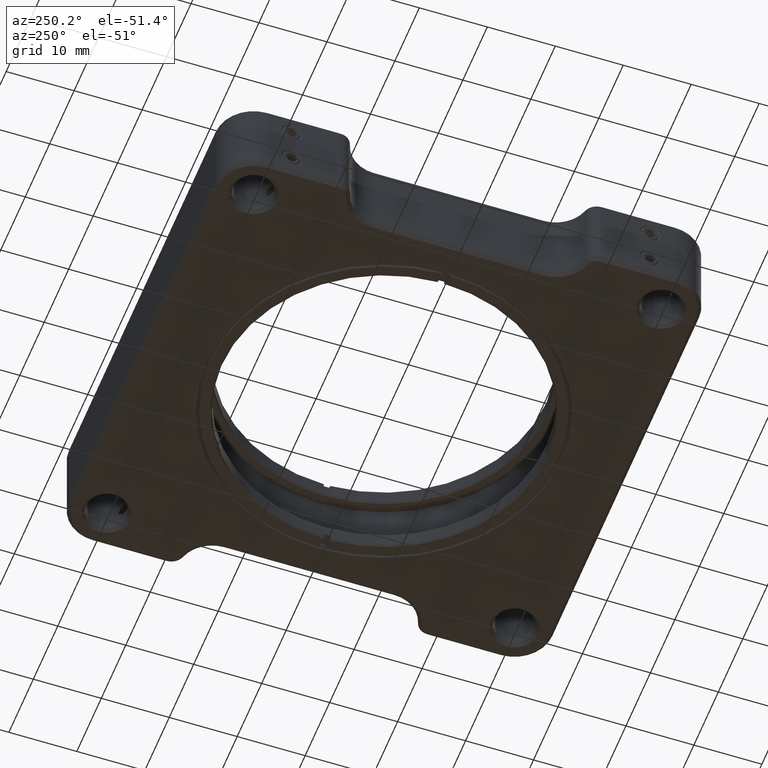
[diagram: clean part render]
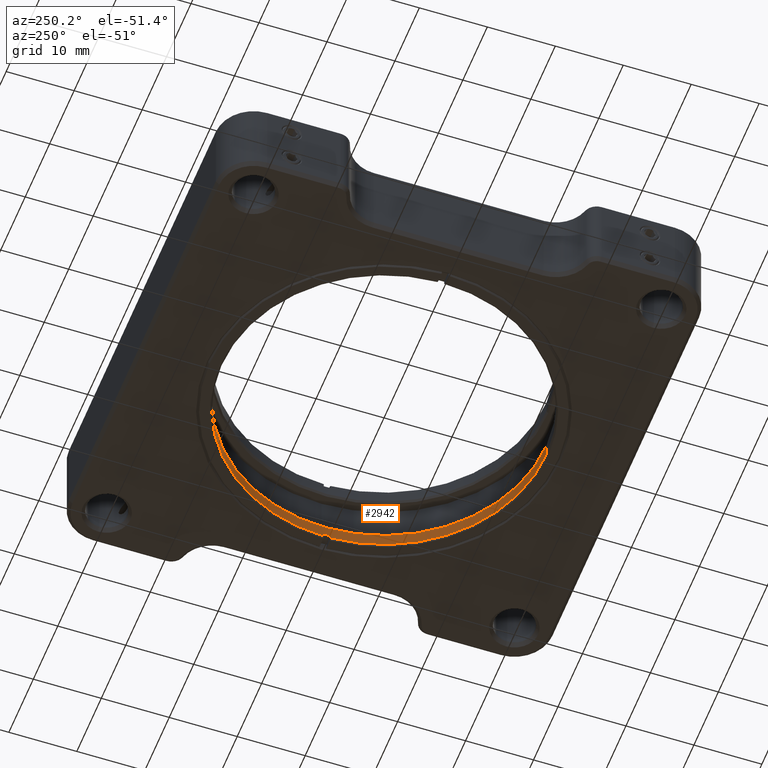
[diagram: same view with one face highlighted and labeled with its STEP entity id]
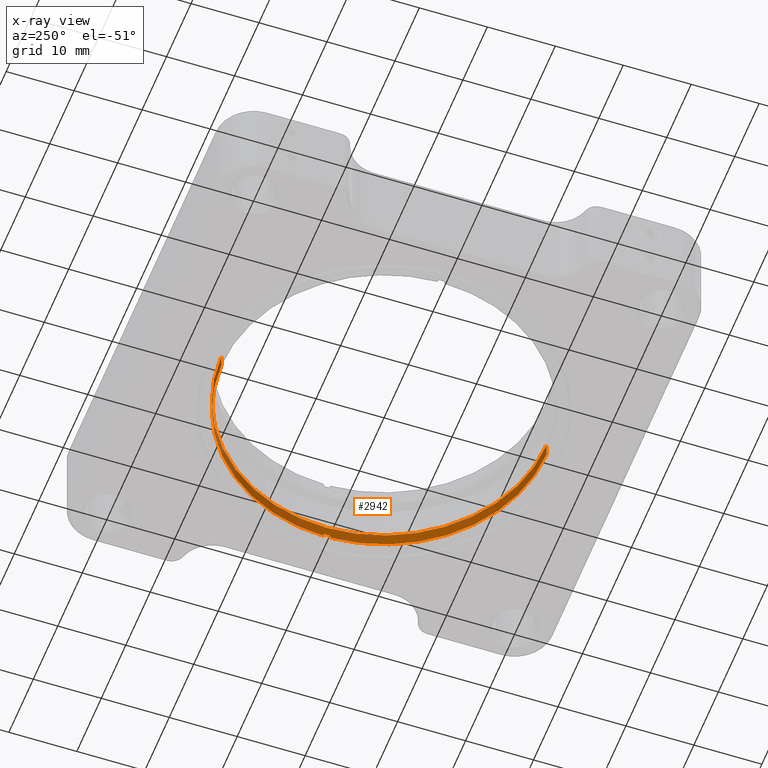
[diagram: x-ray of the same camera — body ghosted, the highlighted face saturated]
A machine part, auxiliary view. The second image highlights one B-rep face of the part: STEP entity #2942.
The next image is the same camera in x-ray: the body ghosted, the highlighted face saturated — about 0% of this face is hidden behind the body in this view.
In plain terms, the highlighted cylindrical surface (partial cylindrical patch) has radius 23.8445 mm, axis along (-0, 0, 1).
Its self-contained STEP definition (entity closure, byte-faithful):
#10 = AXIS2_PLACEMENT_3D ( 'NONE', #1413, #8505, #5449 ) ;
#103 = LINE ( 'NONE', #7204, #7856 ) ;
#163 = EDGE_LOOP ( 'NONE', ( #5368, #1091, #11314, #10917, #11132, #6337, #2376, #4153 ) ) ;
#327 = VERTEX_POINT ( 'NONE', #2629 ) ;
#546 = EDGE_CURVE ( 'NONE', #6300, #10608, #1895, .T. ) ;
#887 = CARTESIAN_POINT ( 'NONE',  ( -0.2251143338168439811, -23.84343733161628620, -6.000000000000000000 ) ) ;
#1091 = ORIENTED_EDGE ( 'NONE', *, *, #546, .T. ) ;
#1321 = CIRCLE ( 'NONE', #13069, 23.84450000000006398 ) ;
#1413 = CARTESIAN_POINT ( 'NONE',  ( 0.000000000000000000, 0.000000000000000000, -5.749999999999982236 ) ) ;
#1615 = DIRECTION ( 'NONE',  ( -0.000000000000000000, 0.000000000000000000, 1.000000000000000000 ) ) ;
#1849 = DIRECTION ( 'NONE',  ( -0.009440933289305309187, -0.9999554333962222818, 0.000000000000000000 ) ) ;
#1852 = AXIS2_PLACEMENT_3D ( 'NONE', #3879, #3825, #1849 ) ;
#1895 = LINE ( 'NONE', #887, #9657 ) ;
#2376 = ORIENTED_EDGE ( 'NONE', *, *, #9074, .T. ) ;
#2629 = CARTESIAN_POINT ( 'NONE',  ( 23.83347422317012132, -0.7250425528775066297, -5.299999999999998934 ) ) ;
#2702 = VERTEX_POINT ( 'NONE', #9064 ) ;
#2842 = CIRCLE ( 'NONE', #10, 23.84450000000006398 ) ;
#2875 = CIRCLE ( 'NONE', #5720, 23.84450000000006398 ) ;
#2893 = VERTEX_POINT ( 'NONE', #6455 ) ;
#2942 = ADVANCED_FACE ( 'NONE', ( #12289 ), #3942, .F. ) ;
#3136 = CARTESIAN_POINT ( 'NONE',  ( 23.84291515645942638, 0.2749128805187181501, -5.749999999999984013 ) ) ;
#3507 = LINE ( 'NONE', #5596, #5871 ) ;
#3724 = CARTESIAN_POINT ( 'NONE',  ( 23.84291515645942638, 0.2749128805187181501, -6.000000000000000000 ) ) ;
#3749 = AXIS2_PLACEMENT_3D ( 'NONE', #6324, #10459, #4392 ) ;
#3825 = DIRECTION ( 'NONE',  ( 0.000000000000000000, 0.000000000000000000, -1.000000000000000000 ) ) ;
#3879 = CARTESIAN_POINT ( 'NONE',  ( 0.000000000000000000, 0.000000000000000000, -5.299999999999998934 ) ) ;
#3886 = CARTESIAN_POINT ( 'NONE',  ( -0.2251143338168439811, -23.84343733161628265, -3.749999999999997335 ) ) ;
#3942 = CYLINDRICAL_SURFACE ( 'NONE', #3749, 23.84450000000006398 ) ;
#4153 = ORIENTED_EDGE ( 'NONE', *, *, #11800, .F. ) ;
#4220 = CARTESIAN_POINT ( 'NONE',  ( 0.000000000000000000, 0.000000000000000000, -3.749999999999997335 ) ) ;
#4226 = DIRECTION ( 'NONE',  ( -0.000000000000000000, 0.000000000000000000, 1.000000000000000000 ) ) ;
#4270 = DIRECTION ( 'NONE',  ( -0.000000000000000000, -0.000000000000000000, 1.000000000000000000 ) ) ;
#4324 = DIRECTION ( 'NONE',  ( -0.009440933289305309187, -0.9999554333962222818, 0.000000000000000000 ) ) ;
#4392 = DIRECTION ( 'NONE',  ( 0.009440933289305309187, 0.9999554333962222818, 0.000000000000000000 ) ) ;
#5022 = DIRECTION ( 'NONE',  ( 0.000000000000000000, 0.000000000000000000, -1.000000000000000000 ) ) ;
#5368 = ORIENTED_EDGE ( 'NONE', *, *, #5421, .T. ) ;
#5421 = EDGE_CURVE ( 'NONE', #2893, #6300, #2842, .T. ) ;
#5449 = DIRECTION ( 'NONE',  ( -0.009440933289305309187, -0.9999554333962222818, 0.000000000000000000 ) ) ;
#5596 = CARTESIAN_POINT ( 'NONE',  ( 0.2251143338168410390, 23.84343733161628620, -6.000000000000000000 ) ) ;
#5720 = AXIS2_PLACEMENT_3D ( 'NONE', #10092, #5022, #12146 ) ;
#5820 = DIRECTION ( 'NONE',  ( 0.000000000000000000, -0.000000000000000000, -1.000000000000000000 ) ) ;
#5871 = VECTOR ( 'NONE', #1615, 1000.000000000000000 ) ;
#6300 = VERTEX_POINT ( 'NONE', #9205 ) ;
#6324 = CARTESIAN_POINT ( 'NONE',  ( 0.000000000000000000, 0.000000000000000000, -6.000000000000000000 ) ) ;
#6337 = ORIENTED_EDGE ( 'NONE', *, *, #8085, .F. ) ;
#6455 = CARTESIAN_POINT ( 'NONE',  ( 23.83347422317012132, -0.7250425528775066297, -5.749999999999982236 ) ) ;
#6501 = VECTOR ( 'NONE', #5820, 1000.000000000000000 ) ;
#6605 = VERTEX_POINT ( 'NONE', #3136 ) ;
#7204 = CARTESIAN_POINT ( 'NONE',  ( 23.83347422317012132, -0.7250425528775066297, -6.000000000000000000 ) ) ;
#7856 = VECTOR ( 'NONE', #4226, 1000.000000000000000 ) ;
#7970 = DIRECTION ( 'NONE',  ( -0.000000000000000000, 0.000000000000000000, 1.000000000000000000 ) ) ;
#8085 = EDGE_CURVE ( 'NONE', #11914, #6605, #12690, .T. ) ;
#8418 = EDGE_CURVE ( 'NONE', #2702, #9155, #3507, .T. ) ;
#8505 = DIRECTION ( 'NONE',  ( 0.000000000000000000, 0.000000000000000000, -1.000000000000000000 ) ) ;
#9064 = CARTESIAN_POINT ( 'NONE',  ( 0.2251143338168404284, 23.84343733161622225, -5.749999999999982236 ) ) ;
#9074 = EDGE_CURVE ( 'NONE', #11914, #327, #9620, .T. ) ;
#9155 = VERTEX_POINT ( 'NONE', #11857 ) ;
#9205 = CARTESIAN_POINT ( 'NONE',  ( -0.2251143338168410390, -23.84343733161628620, -5.749999999999982236 ) ) ;
#9620 = CIRCLE ( 'NONE', #1852, 23.84450000000006398 ) ;
#9657 = VECTOR ( 'NONE', #7970, 1000.000000000000000 ) ;
#9884 = EDGE_CURVE ( 'NONE', #10608, #9155, #1321, .T. ) ;
#10092 = CARTESIAN_POINT ( 'NONE',  ( 0.000000000000000000, 0.000000000000000000, -5.749999999999982236 ) ) ;
#10459 = DIRECTION ( 'NONE',  ( -0.000000000000000000, 0.000000000000000000, 1.000000000000000000 ) ) ;
#10608 = VERTEX_POINT ( 'NONE', #3886 ) ;
#10917 = ORIENTED_EDGE ( 'NONE', *, *, #8418, .F. ) ;
#11132 = ORIENTED_EDGE ( 'NONE', *, *, #11233, .T. ) ;
#11233 = EDGE_CURVE ( 'NONE', #2702, #6605, #2875, .T. ) ;
#11314 = ORIENTED_EDGE ( 'NONE', *, *, #9884, .T. ) ;
#11800 = EDGE_CURVE ( 'NONE', #2893, #327, #103, .T. ) ;
#11857 = CARTESIAN_POINT ( 'NONE',  ( 0.2251143338168410668, 23.84343733161628265, -3.749999999999997335 ) ) ;
#11914 = VERTEX_POINT ( 'NONE', #12313 ) ;
#12146 = DIRECTION ( 'NONE',  ( -0.009440933289305309187, -0.9999554333962222818, 0.000000000000000000 ) ) ;
#12289 = FACE_OUTER_BOUND ( 'NONE', #163, .T. ) ;
#12313 = CARTESIAN_POINT ( 'NONE',  ( 23.84291515645942638, 0.2749128805187181501, -5.299999999999998934 ) ) ;
#12690 = LINE ( 'NONE', #3724, #6501 ) ;
#13069 = AXIS2_PLACEMENT_3D ( 'NONE', #4220, #4270, #4324 ) ;